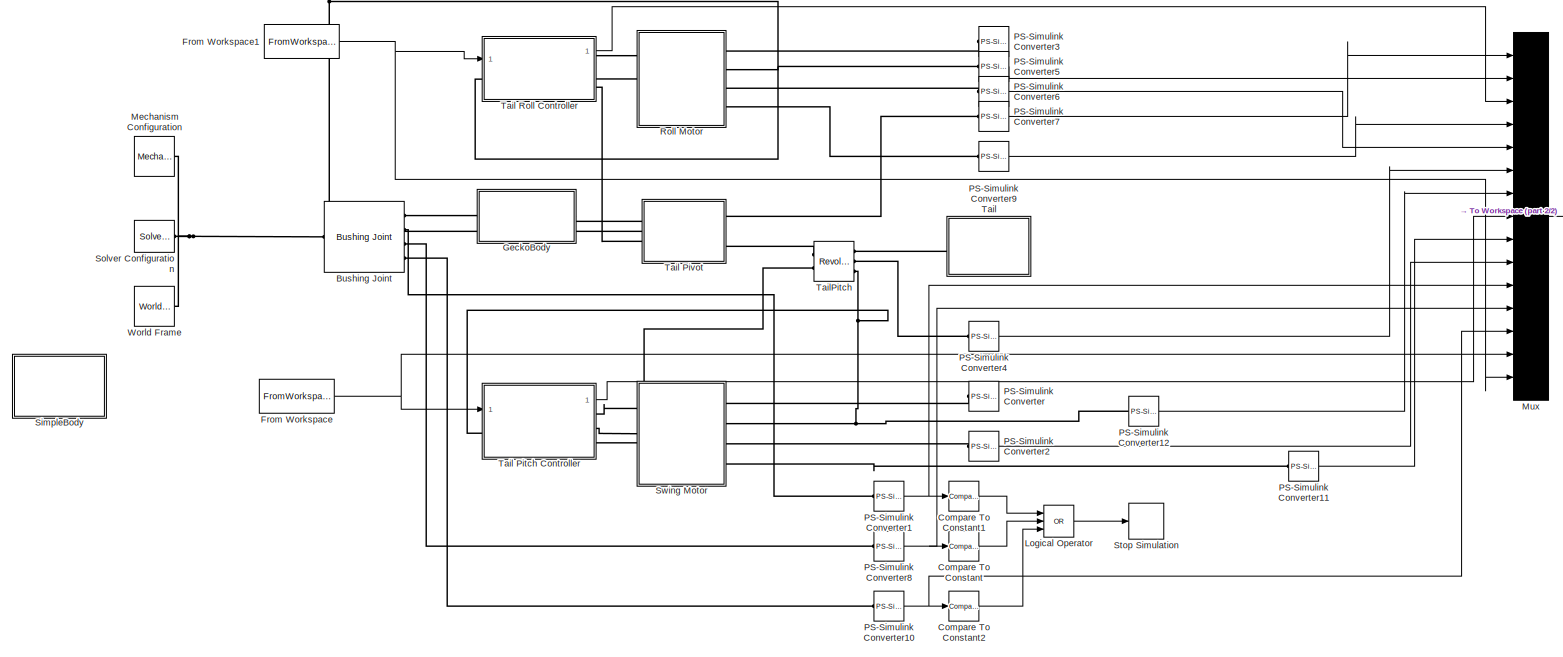
[diagram: root canvas - part 1/2, most of the canvas]
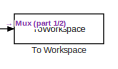
[diagram: root canvas - part 2/2, middle right region]
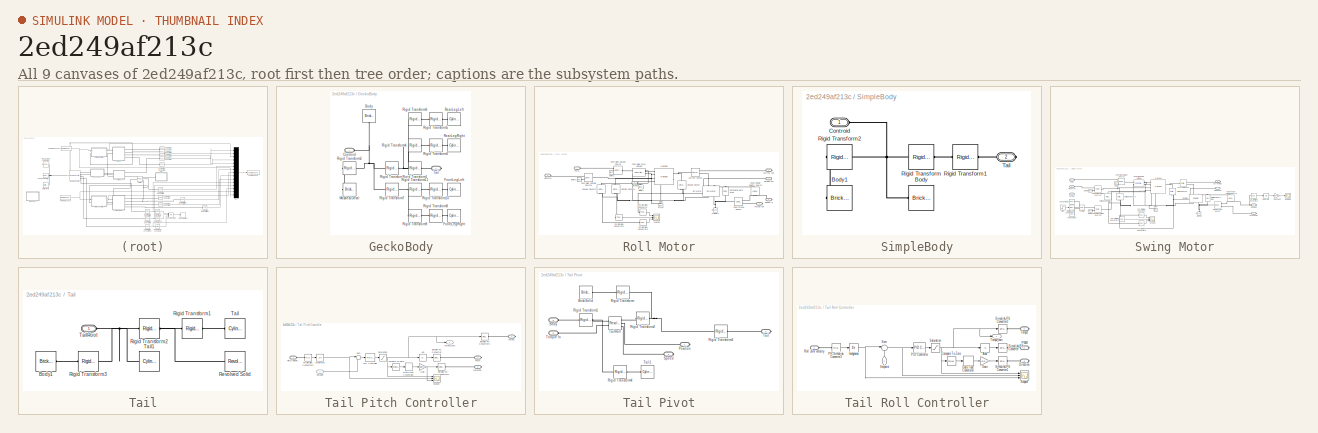
[diagram: thumbnail index - all 9 canvases of the model, root first then tree order]
MODEL slx_2ed249af213c
KIND model
CONFIG AbsTol = auto
CONFIG EnableMultiTasking = on
CONFIG FixedStep = auto
CONFIG InitFcn = TailobaticVariables
CONFIG MaxStep = auto
CONFIG MinStep = auto
CONFIG RelTol = 1e-3
CONFIG SampleTimeConstraint = Unconstrained
CONFIG Solver = VariableStepAuto
CONFIG SolverName = VariableStepAuto
CONFIG StartTime = 0.0
CONFIG StopTime = tmax
BLOCK [Reference] Bushing Joint  REF=sm_lib/Joints/Bushing Joint
  Ports = [0, 0, 0, 0, 0, 1, 4]
  SourceBlock = sm_lib/Joints/Bushing Joint
  SourceProductBaseCode = MS
  SourceProductName = Simscape Multibody
  SourceType = Bushing Joint
BLOCK [Reference] Compare To Constant  REF=simulink/Logic and Bit
Operations/Compare
To Constant
  Ports = [1, 1]
  SourceBlock = simulink/Logic and Bit\nOperations/Compare\nTo Constant
  SourceProductBaseCode = SL
  SourceProductName = Simulink
  SourceType = Compare To Constant
BLOCK [Reference] Compare To Constant1  REF=simulink/Logic and Bit
Operations/Compare
To Constant
  Ports = [1, 1]
  SourceBlock = simulink/Logic and Bit\nOperations/Compare\nTo Constant
  SourceProductBaseCode = SL
  SourceProductName = Simulink
  SourceType = Compare To Constant
BLOCK [Reference] Compare To Constant2  REF=simulink/Logic and Bit
Operations/Compare
To Constant
  Ports = [1, 1]
  SourceBlock = simulink/Logic and Bit\nOperations/Compare\nTo Constant
  SourceProductBaseCode = SL
  SourceProductName = Simulink
  SourceType = Compare To Constant
BLOCK [FromWorkspace] From Workspace
  OutputAfterFinalValue = Holding final value
  SampleTime = 0
  VariableName = PitchInput
  ZeroCross = on
BLOCK [FromWorkspace] From Workspace1
  OutputAfterFinalValue = Holding final value
  SampleTime = 0
  VariableName = RollInput
  ZeroCross = on
BLOCK [SubSystem] GeckoBody
  Ports = [0, 0, 0, 0, 0, 1, 1]
  RequestExecContextInheritance = off
BLOCK [Reference] GeckoBody/Body  REF=sm_lib/Body Elements/Brick Solid
  Ports = [0, 0, 0, 0, 0, 0, 1]
  SourceBlock = sm_lib/Body Elements/Brick Solid
  SourceProductBaseCode = MS
  SourceProductName = Simscape Multibody
  SourceType = Brick Solid
BLOCK [PMIOPort] GeckoBody/Controid
  Side = Left
BLOCK [Reference] GeckoBody/FrontLegLeft  REF=sm_lib/Body Elements/Cylindrical Solid
  Ports = [0, 0, 0, 0, 0, 0, 1]
  SourceBlock = sm_lib/Body Elements/Cylindrical Solid
  SourceProductBaseCode = MS
  SourceProductName = Simscape Multibody
  SourceType = Cylindrical Solid
BLOCK [Reference] GeckoBody/FrontLegRight  REF=sm_lib/Body Elements/Cylindrical Solid
  Ports = [0, 0, 0, 0, 0, 0, 1]
  SourceBlock = sm_lib/Body Elements/Cylindrical Solid
  SourceProductBaseCode = MS
  SourceProductName = Simscape Multibody
  SourceType = Cylindrical Solid
BLOCK [Reference] GeckoBody/Massless Decal  REF=sm_lib/Body Elements/Brick Solid
  Ports = [0, 0, 0, 0, 0, 0, 1]
  SourceBlock = sm_lib/Body Elements/Brick Solid
  SourceProductBaseCode = MS
  SourceProductName = Simscape Multibody
  SourceType = Brick Solid
BLOCK [Reference] GeckoBody/RearLegLeft  REF=sm_lib/Body Elements/Cylindrical Solid
  Ports = [0, 0, 0, 0, 0, 0, 1]
  SourceBlock = sm_lib/Body Elements/Cylindrical Solid
  SourceProductBaseCode = MS
  SourceProductName = Simscape Multibody
  SourceType = Cylindrical Solid
BLOCK [Reference] GeckoBody/RearLegRight  REF=sm_lib/Body Elements/Cylindrical Solid
  Ports = [0, 0, 0, 0, 0, 0, 1]
  SourceBlock = sm_lib/Body Elements/Cylindrical Solid
  SourceProductBaseCode = MS
  SourceProductName = Simscape Multibody
  SourceType = Cylindrical Solid
BLOCK [Reference] GeckoBody/Rigid Transform  REF=sm_lib/Frames and
Transforms/Rigid
Transform
  Ports = [0, 0, 0, 0, 0, 1, 1]
  SourceBlock = sm_lib/Frames and\nTransforms/Rigid\nTransform
  SourceProductBaseCode = MS
  SourceProductName = Simscape Multibody
  SourceType = Rigid\nTransform
BLOCK [Reference] GeckoBody/Rigid Transform1  REF=sm_lib/Frames and
Transforms/Rigid
Transform
  Ports = [0, 0, 0, 0, 0, 1, 1]
  SourceBlock = sm_lib/Frames and\nTransforms/Rigid\nTransform
  SourceProductBaseCode = MS
  SourceProductName = Simscape Multibody
  SourceType = Rigid\nTransform
BLOCK [Reference] GeckoBody/Rigid Transform10  REF=sm_lib/Frames and
Transforms/Rigid
Transform
  Ports = [0, 0, 0, 0, 0, 1, 1]
  SourceBlock = sm_lib/Frames and\nTransforms/Rigid\nTransform
  SourceProductBaseCode = MS
  SourceProductName = Simscape Multibody
  SourceType = Rigid\nTransform
BLOCK [Reference] GeckoBody/Rigid Transform11  REF=sm_lib/Frames and
Transforms/Rigid
Transform
  Ports = [0, 0, 0, 0, 0, 1, 1]
  SourceBlock = sm_lib/Frames and\nTransforms/Rigid\nTransform
  SourceProductBaseCode = MS
  SourceProductName = Simscape Multibody
  SourceType = Rigid\nTransform
BLOCK [Reference] GeckoBody/Rigid Transform2  REF=sm_lib/Frames and
Transforms/Rigid
Transform
  Ports = [0, 0, 0, 0, 0, 1, 1]
  SourceBlock = sm_lib/Frames and\nTransforms/Rigid\nTransform
  SourceProductBaseCode = MS
  SourceProductName = Simscape Multibody
  SourceType = Rigid\nTransform
BLOCK [Reference] GeckoBody/Rigid Transform3  REF=sm_lib/Frames and
Transforms/Rigid
Transform
  Ports = [0, 0, 0, 0, 0, 1, 1]
  SourceBlock = sm_lib/Frames and\nTransforms/Rigid\nTransform
  SourceProductBaseCode = MS
  SourceProductName = Simscape Multibody
  SourceType = Rigid\nTransform
BLOCK [Reference] GeckoBody/Rigid Transform4  REF=sm_lib/Frames and
Transforms/Rigid
Transform
  Ports = [0, 0, 0, 0, 0, 1, 1]
  SourceBlock = sm_lib/Frames and\nTransforms/Rigid\nTransform
  SourceProductBaseCode = MS
  SourceProductName = Simscape Multibody
  SourceType = Rigid\nTransform
BLOCK [Reference] GeckoBody/Rigid Transform5  REF=sm_lib/Frames and
Transforms/Rigid
Transform
  Ports = [0, 0, 0, 0, 0, 1, 1]
  SourceBlock = sm_lib/Frames and\nTransforms/Rigid\nTransform
  SourceProductBaseCode = MS
  SourceProductName = Simscape Multibody
  SourceType = Rigid\nTransform
BLOCK [Reference] GeckoBody/Rigid Transform6  REF=sm_lib/Frames and
Transforms/Rigid
Transform
  Ports = [0, 0, 0, 0, 0, 1, 1]
  SourceBlock = sm_lib/Frames and\nTransforms/Rigid\nTransform
  SourceProductBaseCode = MS
  SourceProductName = Simscape Multibody
  SourceType = Rigid\nTransform
BLOCK [Reference] GeckoBody/Rigid Transform7  REF=sm_lib/Frames and
Transforms/Rigid
Transform
  Ports = [0, 0, 0, 0, 0, 1, 1]
  SourceBlock = sm_lib/Frames and\nTransforms/Rigid\nTransform
  SourceProductBaseCode = MS
  SourceProductName = Simscape Multibody
  SourceType = Rigid\nTransform
BLOCK [Reference] GeckoBody/Rigid Transform8  REF=sm_lib/Frames and
Transforms/Rigid
Transform
  Ports = [0, 0, 0, 0, 0, 1, 1]
  SourceBlock = sm_lib/Frames and\nTransforms/Rigid\nTransform
  SourceProductBaseCode = MS
  SourceProductName = Simscape Multibody
  SourceType = Rigid\nTransform
BLOCK [Reference] GeckoBody/Rigid Transform9  REF=sm_lib/Frames and
Transforms/Rigid
Transform
  Ports = [0, 0, 0, 0, 0, 1, 1]
  SourceBlock = sm_lib/Frames and\nTransforms/Rigid\nTransform
  SourceProductBaseCode = MS
  SourceProductName = Simscape Multibody
  SourceType = Rigid\nTransform
BLOCK [PMIOPort] GeckoBody/Tail
  Port = 2
  Side = Right
BLOCK [Logic] Logical Operator
  AllPortsSameDT = off
  Inputs = 3
  Operator = OR
  OutDataTypeStr = boolean
  Ports = [3, 1]
BLOCK [Reference] Mechanism Configuration  REF=sm_lib/Utilities/Mechanism
Configuration
  Ports = [0, 0, 0, 0, 0, 0, 1]
  SourceBlock = sm_lib/Utilities/Mechanism\nConfiguration
  SourceProductBaseCode = MS
  SourceProductName = Simscape Multibody
  SourceType = Mechanism\nConfiguration
BLOCK [Mux] Mux
  DisplayOption = bar
  Inputs = 15
  Ports = [15, 1]
BLOCK [Reference] PS-Simulink Converter  REF=nesl_utility/PS-Simulink
Converter
  Ports = [0, 1, 0, 0, 0, 1]
  SourceBlock = nesl_utility/PS-Simulink\nConverter
  SourceProductBaseCode = SS
  SourceProductName = Simscape
  SourceType = PS-Simulink\nConverter
BLOCK [Reference] PS-Simulink Converter1  REF=nesl_utility/PS-Simulink
Converter
  Ports = [0, 1, 0, 0, 0, 1]
  SourceBlock = nesl_utility/PS-Simulink\nConverter
  SourceProductBaseCode = SS
  SourceProductName = Simscape
  SourceType = PS-Simulink\nConverter
BLOCK [Reference] PS-Simulink Converter10  REF=nesl_utility/PS-Simulink
Converter
  Ports = [0, 1, 0, 0, 0, 1]
  SourceBlock = nesl_utility/PS-Simulink\nConverter
  SourceProductBaseCode = SS
  SourceProductName = Simscape
  SourceType = PS-Simulink\nConverter
BLOCK [Reference] PS-Simulink Converter11  REF=nesl_utility/PS-Simulink
Converter
  Ports = [0, 1, 0, 0, 0, 1]
  SourceBlock = nesl_utility/PS-Simulink\nConverter
  SourceProductBaseCode = SS
  SourceProductName = Simscape
  SourceType = PS-Simulink\nConverter
BLOCK [Reference] PS-Simulink Converter12  REF=nesl_utility/PS-Simulink
Converter
  Ports = [0, 1, 0, 0, 0, 1]
  SourceBlock = nesl_utility/PS-Simulink\nConverter
  SourceProductBaseCode = SS
  SourceProductName = Simscape
  SourceType = PS-Simulink\nConverter
BLOCK [Reference] PS-Simulink Converter2  REF=nesl_utility/PS-Simulink
Converter
  Ports = [0, 1, 0, 0, 0, 1]
  SourceBlock = nesl_utility/PS-Simulink\nConverter
  SourceProductBaseCode = SS
  SourceProductName = Simscape
  SourceType = PS-Simulink\nConverter
BLOCK [Reference] PS-Simulink Converter3  REF=nesl_utility/PS-Simulink
Converter
  Ports = [0, 1, 0, 0, 0, 1]
  SourceBlock = nesl_utility/PS-Simulink\nConverter
  SourceProductBaseCode = SS
  SourceProductName = Simscape
  SourceType = PS-Simulink\nConverter
BLOCK [Reference] PS-Simulink Converter4  REF=nesl_utility/PS-Simulink
Converter
  Ports = [0, 1, 0, 0, 0, 1]
  SourceBlock = nesl_utility/PS-Simulink\nConverter
  SourceProductBaseCode = SS
  SourceProductName = Simscape
  SourceType = PS-Simulink\nConverter
BLOCK [Reference] PS-Simulink Converter5  REF=nesl_utility/PS-Simulink
Converter
  Ports = [0, 1, 0, 0, 0, 1]
  SourceBlock = nesl_utility/PS-Simulink\nConverter
  SourceProductBaseCode = SS
  SourceProductName = Simscape
  SourceType = PS-Simulink\nConverter
BLOCK [Reference] PS-Simulink Converter6  REF=nesl_utility/PS-Simulink
Converter
  Ports = [0, 1, 0, 0, 0, 1]
  SourceBlock = nesl_utility/PS-Simulink\nConverter
  SourceProductBaseCode = SS
  SourceProductName = Simscape
  SourceType = PS-Simulink\nConverter
BLOCK [Reference] PS-Simulink Converter7  REF=nesl_utility/PS-Simulink
Converter
  Ports = [0, 1, 0, 0, 0, 1]
  SourceBlock = nesl_utility/PS-Simulink\nConverter
  SourceProductBaseCode = SS
  SourceProductName = Simscape
  SourceType = PS-Simulink\nConverter
BLOCK [Reference] PS-Simulink Converter8  REF=nesl_utility/PS-Simulink
Converter
  Ports = [0, 1, 0, 0, 0, 1]
  SourceBlock = nesl_utility/PS-Simulink\nConverter
  SourceProductBaseCode = SS
  SourceProductName = Simscape
  SourceType = PS-Simulink\nConverter
BLOCK [Reference] PS-Simulink Converter9  REF=nesl_utility/PS-Simulink
Converter
  Ports = [0, 1, 0, 0, 0, 1]
  SourceBlock = nesl_utility/PS-Simulink\nConverter
  SourceProductBaseCode = SS
  SourceProductName = Simscape
  SourceType = PS-Simulink\nConverter
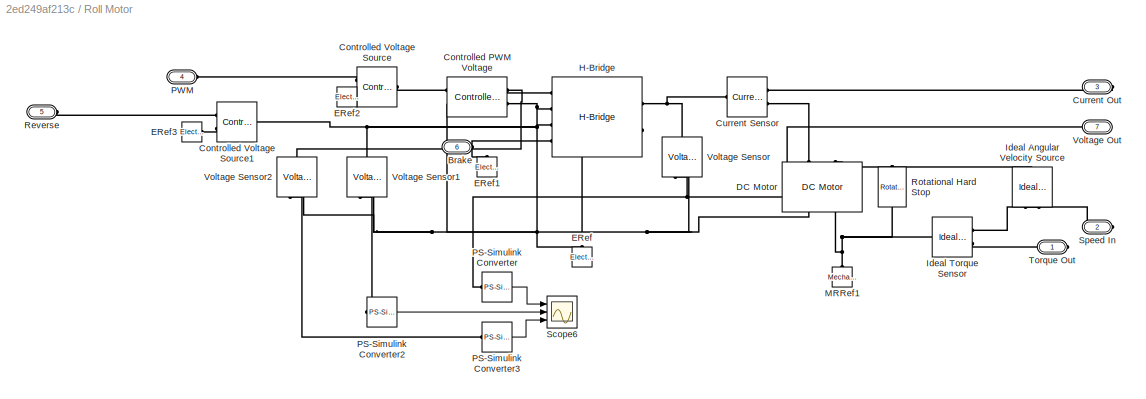
BLOCK [SubSystem] Roll Motor
  Commented = on
  Ports = [0, 0, 0, 0, 0, 3, 4]
  RequestExecContextInheritance = off
BLOCK [PMIOPort] Roll Motor/Brake
  Port = 6
  Side = Left
BLOCK [Reference] Roll Motor/Controlled PWM Voltage  REF=ee_lib/Integrated Circuits/Controlled PWM
Voltage
  Ports = [0, 0, 0, 0, 0, 2, 2]
  SourceBlock = ee_lib/Integrated Circuits/Controlled PWM\nVoltage
  SourceProductBaseCode = PS
  SourceProductName = Simscape Electrical
  SourceType = Controlled PWM\nVoltage
BLOCK [Reference] Roll Motor/Controlled Voltage Source  REF=fl_lib/Electrical/Electrical Sources/Controlled Voltage
Source
  Ports = [0, 0, 0, 0, 0, 1, 2]
  SourceBlock = fl_lib/Electrical/Electrical Sources/Controlled Voltage\nSource
  SourceProductBaseCode = SS
  SourceProductName = Simscape
  SourceType = Controlled Voltage\nSource
BLOCK [Reference] Roll Motor/Controlled Voltage Source1  REF=fl_lib/Electrical/Electrical Sources/Controlled Voltage
Source
  Ports = [0, 0, 0, 0, 0, 1, 2]
  SourceBlock = fl_lib/Electrical/Electrical Sources/Controlled Voltage\nSource
  SourceProductBaseCode = SS
  SourceProductName = Simscape
  SourceType = Controlled Voltage\nSource
BLOCK [PMIOPort] Roll Motor/Current Out
  Port = 3
  Side = Right
BLOCK [Reference] Roll Motor/Current Sensor  REF=fl_lib/Electrical/Electrical Sensors/Current Sensor
  Ports = [0, 0, 0, 0, 0, 1, 2]
  SourceBlock = fl_lib/Electrical/Electrical Sensors/Current Sensor
  SourceProductBaseCode = SS
  SourceProductName = Simscape
  SourceType = Current Sensor
BLOCK [Reference] Roll Motor/DC Motor  REF=ee_lib/Electromechanical/Brushed Motors/DC Motor
  Ports = [0, 0, 0, 0, 0, 2, 2]
  SourceBlock = ee_lib/Electromechanical/Brushed Motors/DC Motor
  SourceProductBaseCode = PS
  SourceProductName = Simscape Electrical
  SourceType = DC Motor
BLOCK [Reference] Roll Motor/ERef  REF=fl_lib/Electrical/Electrical Elements/Electrical Reference
  Ports = [0, 0, 0, 0, 0, 1]
  SourceBlock = fl_lib/Electrical/Electrical Elements/Electrical Reference
  SourceProductName = Foundation Library
  SourceType = Electrical Reference
BLOCK [Reference] Roll Motor/ERef1  REF=fl_lib/Electrical/Electrical Elements/Electrical Reference
  Ports = [0, 0, 0, 0, 0, 1]
  SourceBlock = fl_lib/Electrical/Electrical Elements/Electrical Reference
  SourceProductName = Foundation Library
  SourceType = Electrical Reference
BLOCK [Reference] Roll Motor/ERef2  REF=fl_lib/Electrical/Electrical Elements/Electrical Reference
  Ports = [0, 0, 0, 0, 0, 1]
  SourceBlock = fl_lib/Electrical/Electrical Elements/Electrical Reference
  SourceProductName = Foundation Library
  SourceType = Electrical Reference
BLOCK [Reference] Roll Motor/ERef3  REF=fl_lib/Electrical/Electrical Elements/Electrical Reference
  Ports = [0, 0, 0, 0, 0, 1]
  SourceBlock = fl_lib/Electrical/Electrical Elements/Electrical Reference
  SourceProductName = Foundation Library
  SourceType = Electrical Reference
BLOCK [Reference] Roll Motor/H-Bridge  REF=ee_lib/Semiconductors &
Converters/Converters/H-Bridge
  Ports = [0, 0, 0, 0, 0, 4, 2]
  SourceBlock = ee_lib/Semiconductors &\nConverters/Converters/H-Bridge
  SourceProductBaseCode = PS
  SourceProductName = Simscape Electrical
  SourceType = H-Bridge
BLOCK [Reference] Roll Motor/Ideal Angular Velocity Source  REF=fl_lib/Mechanical/Mechanical Sources/Ideal Angular
Velocity Source
  Ports = [0, 0, 0, 0, 0, 1, 2]
  SourceBlock = fl_lib/Mechanical/Mechanical Sources/Ideal Angular\nVelocity Source
  SourceProductBaseCode = SS
  SourceProductName = Simscape
  SourceType = Ideal Angular\nVelocity Source
BLOCK [Reference] Roll Motor/Ideal Torque Sensor  REF=fl_lib/Mechanical/Mechanical Sensors/Ideal Torque Sensor
  Ports = [0, 0, 0, 0, 0, 1, 2]
  SourceBlock = fl_lib/Mechanical/Mechanical Sensors/Ideal Torque Sensor
  SourceProductBaseCode = SS
  SourceProductName = Simscape
  SourceType = Ideal Torque Sensor
BLOCK [Reference] Roll Motor/MRRef1  REF=fl_lib/Mechanical/Rotational Elements/Mechanical
Rotational Reference
  Ports = [0, 0, 0, 0, 0, 1]
  SourceBlock = fl_lib/Mechanical/Rotational Elements/Mechanical\nRotational Reference
  SourceProductName = Foundation Library
  SourceType = Mechanical\nRotational Reference
BLOCK [Reference] Roll Motor/PS-Simulink Converter  REF=nesl_utility/PS-Simulink
Converter
  Ports = [0, 1, 0, 0, 0, 1]
  SourceBlock = nesl_utility/PS-Simulink\nConverter
  SourceProductBaseCode = SS
  SourceProductName = Simscape
  SourceType = PS-Simulink\nConverter
BLOCK [Reference] Roll Motor/PS-Simulink Converter2  REF=nesl_utility/PS-Simulink
Converter
  Ports = [0, 1, 0, 0, 0, 1]
  SourceBlock = nesl_utility/PS-Simulink\nConverter
  SourceProductBaseCode = SS
  SourceProductName = Simscape
  SourceType = PS-Simulink\nConverter
BLOCK [Reference] Roll Motor/PS-Simulink Converter3  REF=nesl_utility/PS-Simulink
Converter
  Ports = [0, 1, 0, 0, 0, 1]
  SourceBlock = nesl_utility/PS-Simulink\nConverter
  SourceProductBaseCode = SS
  SourceProductName = Simscape
  SourceType = PS-Simulink\nConverter
BLOCK [PMIOPort] Roll Motor/PWM
  Port = 4
  Side = Left
BLOCK [PMIOPort] Roll Motor/Reverse
  Port = 5
  Side = Left
BLOCK [Reference] Roll Motor/Rotational Hard Stop  REF=fl_lib/Mechanical/Rotational Elements/Rotational Hard Stop
  Commented = on
  Ports = [0, 0, 0, 0, 0, 1, 1]
  SourceBlock = fl_lib/Mechanical/Rotational Elements/Rotational Hard Stop
  SourceProductBaseCode = SS
  SourceProductName = Simscape
  SourceType = Rotational Hard Stop
BLOCK [Scope] Roll Motor/Scope6
  Floating = off
  NumInputPorts = 3
  Ports = [3]
  ScopeSpecificationString = Simulink.scopes.TimeScopeBlockCfg('CurrentConfiguration', extmgr.ConfigurationSet(extmgr.Configuration('Core','General UI',true),extmgr.Configuration('Core','Source UI',true),extmgr.Configuration('Sources','WiredSimulink',true,'DataLoggingVariableName','ScopeData5'),extmgr.Configuration('Visuals','Time Domain',true,'SerializedDisplays',{struct('MinYLimReal','-10.76534','MaxYLimReal','6.7517','YLab...<+1491ch>
BLOCK [PMIOPort] Roll Motor/Speed In
  Port = 2
  Side = Right
BLOCK [PMIOPort] Roll Motor/Torque Out
  Side = Right
BLOCK [PMIOPort] Roll Motor/Voltage Out
  Port = 7
  Side = Right
BLOCK [Reference] Roll Motor/Voltage Sensor  REF=fl_lib/Electrical/Electrical Sensors/Voltage Sensor
  Ports = [0, 0, 0, 0, 0, 1, 2]
  SourceBlock = fl_lib/Electrical/Electrical Sensors/Voltage Sensor
  SourceProductBaseCode = SS
  SourceProductName = Simscape
  SourceType = Voltage Sensor
BLOCK [Reference] Roll Motor/Voltage Sensor1  REF=fl_lib/Electrical/Electrical Sensors/Voltage Sensor
  Ports = [0, 0, 0, 0, 0, 1, 2]
  SourceBlock = fl_lib/Electrical/Electrical Sensors/Voltage Sensor
  SourceProductBaseCode = SS
  SourceProductName = Simscape
  SourceType = Voltage Sensor
BLOCK [Reference] Roll Motor/Voltage Sensor2  REF=fl_lib/Electrical/Electrical Sensors/Voltage Sensor
  Ports = [0, 0, 0, 0, 0, 1, 2]
  SourceBlock = fl_lib/Electrical/Electrical Sensors/Voltage Sensor
  SourceProductBaseCode = SS
  SourceProductName = Simscape
  SourceType = Voltage Sensor
BLOCK [SubSystem] SimpleBody
  Commented = on
  Ports = [0, 0, 0, 0, 0, 1, 1]
  RequestExecContextInheritance = off
BLOCK [Reference] SimpleBody/Body  REF=sm_lib/Body Elements/Brick Solid
  Ports = [0, 0, 0, 0, 0, 0, 1]
  SourceBlock = sm_lib/Body Elements/Brick Solid
  SourceProductBaseCode = MS
  SourceProductName = Simscape Multibody
  SourceType = Brick Solid
BLOCK [Reference] SimpleBody/Body1  REF=sm_lib/Body Elements/Brick Solid
  Ports = [0, 0, 0, 0, 0, 0, 1]
  SourceBlock = sm_lib/Body Elements/Brick Solid
  SourceProductBaseCode = MS
  SourceProductName = Simscape Multibody
  SourceType = Brick Solid
BLOCK [PMIOPort] SimpleBody/Controid
  Side = Left
BLOCK [Reference] SimpleBody/Rigid Transform  REF=sm_lib/Frames and
Transforms/Rigid
Transform
  Ports = [0, 0, 0, 0, 0, 1, 1]
  SourceBlock = sm_lib/Frames and\nTransforms/Rigid\nTransform
  SourceProductBaseCode = MS
  SourceProductName = Simscape Multibody
  SourceType = Rigid\nTransform
BLOCK [Reference] SimpleBody/Rigid Transform1  REF=sm_lib/Frames and
Transforms/Rigid
Transform
  Ports = [0, 0, 0, 0, 0, 1, 1]
  SourceBlock = sm_lib/Frames and\nTransforms/Rigid\nTransform
  SourceProductBaseCode = MS
  SourceProductName = Simscape Multibody
  SourceType = Rigid\nTransform
BLOCK [Reference] SimpleBody/Rigid Transform2  REF=sm_lib/Frames and
Transforms/Rigid
Transform
  Ports = [0, 0, 0, 0, 0, 1, 1]
  SourceBlock = sm_lib/Frames and\nTransforms/Rigid\nTransform
  SourceProductBaseCode = MS
  SourceProductName = Simscape Multibody
  SourceType = Rigid\nTransform
BLOCK [PMIOPort] SimpleBody/Tail
  Port = 2
  Side = Right
BLOCK [Reference] Solver Configuration  REF=nesl_utility/Solver
Configuration
  Ports = [0, 0, 0, 0, 0, 0, 1]
  SourceBlock = nesl_utility/Solver\nConfiguration
  SourceProductBaseCode = SS
  SourceProductName = Simscape
  SourceType = Solver\nConfiguration
BLOCK [Stop] Stop Simulation
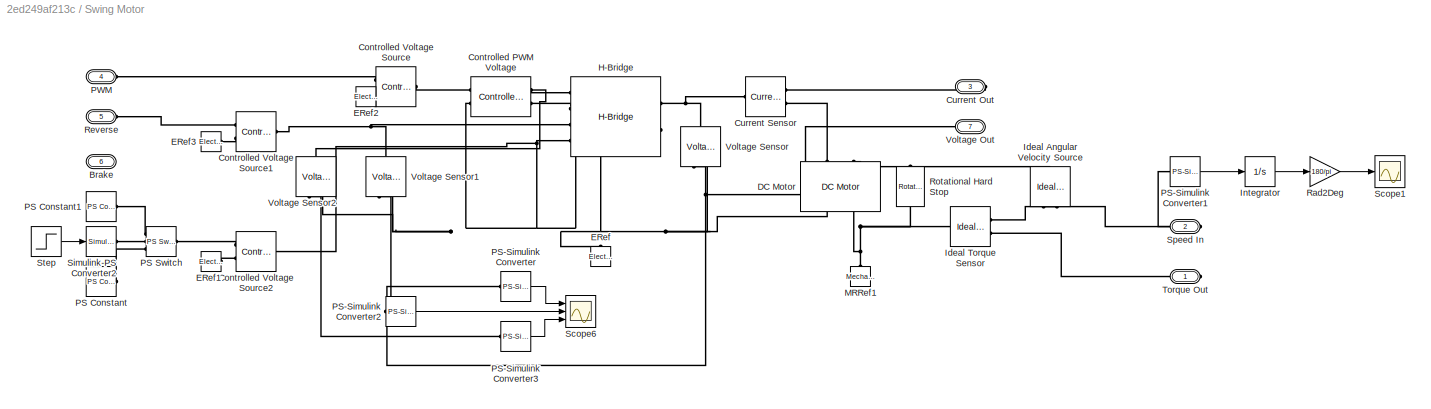
BLOCK [SubSystem] Swing Motor
  Commented = on
  Ports = [0, 0, 0, 0, 0, 3, 4]
  RequestExecContextInheritance = off
BLOCK [PMIOPort] Swing Motor/Brake
  Port = 6
  Side = Left
BLOCK [Reference] Swing Motor/Controlled PWM Voltage  REF=ee_lib/Integrated Circuits/Controlled PWM
Voltage
  Ports = [0, 0, 0, 0, 0, 2, 2]
  SourceBlock = ee_lib/Integrated Circuits/Controlled PWM\nVoltage
  SourceProductBaseCode = PS
  SourceProductName = Simscape Electrical
  SourceType = Controlled PWM\nVoltage
BLOCK [Reference] Swing Motor/Controlled Voltage Source  REF=fl_lib/Electrical/Electrical Sources/Controlled Voltage
Source
  Ports = [0, 0, 0, 0, 0, 1, 2]
  SourceBlock = fl_lib/Electrical/Electrical Sources/Controlled Voltage\nSource
  SourceProductBaseCode = SS
  SourceProductName = Simscape
  SourceType = Controlled Voltage\nSource
BLOCK [Reference] Swing Motor/Controlled Voltage Source1  REF=fl_lib/Electrical/Electrical Sources/Controlled Voltage
Source
  Ports = [0, 0, 0, 0, 0, 1, 2]
  SourceBlock = fl_lib/Electrical/Electrical Sources/Controlled Voltage\nSource
  SourceProductBaseCode = SS
  SourceProductName = Simscape
  SourceType = Controlled Voltage\nSource
BLOCK [Reference] Swing Motor/Controlled Voltage Source2  REF=fl_lib/Electrical/Electrical Sources/Controlled Voltage
Source
  Commented = on
  Ports = [0, 0, 0, 0, 0, 1, 2]
  SourceBlock = fl_lib/Electrical/Electrical Sources/Controlled Voltage\nSource
  SourceProductBaseCode = SS
  SourceProductName = Simscape
  SourceType = Controlled Voltage\nSource
BLOCK [PMIOPort] Swing Motor/Current Out
  Port = 3
  Side = Right
BLOCK [Reference] Swing Motor/Current Sensor  REF=fl_lib/Electrical/Electrical Sensors/Current Sensor
  Ports = [0, 0, 0, 0, 0, 1, 2]
  SourceBlock = fl_lib/Electrical/Electrical Sensors/Current Sensor
  SourceProductBaseCode = SS
  SourceProductName = Simscape
  SourceType = Current Sensor
BLOCK [Reference] Swing Motor/DC Motor  REF=ee_lib/Electromechanical/Brushed Motors/DC Motor
  Ports = [0, 0, 0, 0, 0, 2, 2]
  SourceBlock = ee_lib/Electromechanical/Brushed Motors/DC Motor
  SourceProductBaseCode = PS
  SourceProductName = Simscape Electrical
  SourceType = DC Motor
BLOCK [Reference] Swing Motor/ERef  REF=fl_lib/Electrical/Electrical Elements/Electrical Reference
  Ports = [0, 0, 0, 0, 0, 1]
  SourceBlock = fl_lib/Electrical/Electrical Elements/Electrical Reference
  SourceProductName = Foundation Library
  SourceType = Electrical Reference
BLOCK [Reference] Swing Motor/ERef1  REF=fl_lib/Electrical/Electrical Elements/Electrical Reference
  Commented = on
  Ports = [0, 0, 0, 0, 0, 1]
  SourceBlock = fl_lib/Electrical/Electrical Elements/Electrical Reference
  SourceProductName = Foundation Library
  SourceType = Electrical Reference
BLOCK [Reference] Swing Motor/ERef2  REF=fl_lib/Electrical/Electrical Elements/Electrical Reference
  Ports = [0, 0, 0, 0, 0, 1]
  SourceBlock = fl_lib/Electrical/Electrical Elements/Electrical Reference
  SourceProductName = Foundation Library
  SourceType = Electrical Reference
BLOCK [Reference] Swing Motor/ERef3  REF=fl_lib/Electrical/Electrical Elements/Electrical Reference
  Ports = [0, 0, 0, 0, 0, 1]
  SourceBlock = fl_lib/Electrical/Electrical Elements/Electrical Reference
  SourceProductName = Foundation Library
  SourceType = Electrical Reference
BLOCK [Reference] Swing Motor/H-Bridge  REF=ee_lib/Semiconductors &
Converters/Converters/H-Bridge
  Ports = [0, 0, 0, 0, 0, 4, 2]
  SourceBlock = ee_lib/Semiconductors &\nConverters/Converters/H-Bridge
  SourceProductBaseCode = PS
  SourceProductName = Simscape Electrical
  SourceType = H-Bridge
BLOCK [Reference] Swing Motor/Ideal Angular Velocity Source  REF=fl_lib/Mechanical/Mechanical Sources/Ideal Angular
Velocity Source
  Ports = [0, 0, 0, 0, 0, 1, 2]
  SourceBlock = fl_lib/Mechanical/Mechanical Sources/Ideal Angular\nVelocity Source
  SourceProductBaseCode = SS
  SourceProductName = Simscape
  SourceType = Ideal Angular\nVelocity Source
BLOCK [Reference] Swing Motor/Ideal Torque Sensor  REF=fl_lib/Mechanical/Mechanical Sensors/Ideal Torque Sensor
  Ports = [0, 0, 0, 0, 0, 1, 2]
  SourceBlock = fl_lib/Mechanical/Mechanical Sensors/Ideal Torque Sensor
  SourceProductBaseCode = SS
  SourceProductName = Simscape
  SourceType = Ideal Torque Sensor
BLOCK [Integrator] Swing Motor/Integrator
  Ports = [1, 1]
BLOCK [Reference] Swing Motor/MRRef1  REF=fl_lib/Mechanical/Rotational Elements/Mechanical
Rotational Reference
  Ports = [0, 0, 0, 0, 0, 1]
  SourceBlock = fl_lib/Mechanical/Rotational Elements/Mechanical\nRotational Reference
  SourceProductName = Foundation Library
  SourceType = Mechanical\nRotational Reference
BLOCK [Reference] Swing Motor/PS Constant  REF=fl_lib/Physical Signals/Sources/PS Constant
  Commented = on
  Ports = [0, 0, 0, 0, 0, 0, 1]
  SourceBlock = fl_lib/Physical Signals/Sources/PS Constant
  SourceProductBaseCode = SS
  SourceProductName = Simscape
  SourceType = PS Constant
BLOCK [Reference] Swing Motor/PS Constant1  REF=fl_lib/Physical Signals/Sources/PS Constant
  Commented = on
  Ports = [0, 0, 0, 0, 0, 0, 1]
  SourceBlock = fl_lib/Physical Signals/Sources/PS Constant
  SourceProductBaseCode = SS
  SourceProductName = Simscape
  SourceType = PS Constant
BLOCK [Reference] Swing Motor/PS Switch  REF=fl_ps_legacy_lib/Legacy Physical
Signals/Nonlinear Operators/PS Switch
  Commented = on
  Ports = [0, 0, 0, 0, 0, 3, 1]
  SourceBlock = fl_ps_legacy_lib/Legacy Physical\nSignals/Nonlinear Operators/PS Switch
  SourceProductBaseCode = SS
  SourceProductName = Simscape
  SourceType = PS Switch
BLOCK [Reference] Swing Motor/PS-Simulink Converter  REF=nesl_utility/PS-Simulink
Converter
  Ports = [0, 1, 0, 0, 0, 1]
  SourceBlock = nesl_utility/PS-Simulink\nConverter
  SourceProductBaseCode = SS
  SourceProductName = Simscape
  SourceType = PS-Simulink\nConverter
BLOCK [Reference] Swing Motor/PS-Simulink Converter1  REF=nesl_utility/PS-Simulink
Converter
  Ports = [0, 1, 0, 0, 0, 1]
  SourceBlock = nesl_utility/PS-Simulink\nConverter
  SourceProductBaseCode = SS
  SourceProductName = Simscape
  SourceType = PS-Simulink\nConverter
BLOCK [Reference] Swing Motor/PS-Simulink Converter2  REF=nesl_utility/PS-Simulink
Converter
  Ports = [0, 1, 0, 0, 0, 1]
  SourceBlock = nesl_utility/PS-Simulink\nConverter
  SourceProductBaseCode = SS
  SourceProductName = Simscape
  SourceType = PS-Simulink\nConverter
BLOCK [Reference] Swing Motor/PS-Simulink Converter3  REF=nesl_utility/PS-Simulink
Converter
  Ports = [0, 1, 0, 0, 0, 1]
  SourceBlock = nesl_utility/PS-Simulink\nConverter
  SourceProductBaseCode = SS
  SourceProductName = Simscape
  SourceType = PS-Simulink\nConverter
BLOCK [PMIOPort] Swing Motor/PWM
  Port = 4
  Side = Left
BLOCK [Gain] Swing Motor/Rad2Deg 
  Gain = 180/pi
  OutDataTypeStr = Inherit: Inherit via internal rule
  ParamDataTypeStr = Inherit: Inherit via internal rule
  SaturateOnIntegerOverflow = off
BLOCK [PMIOPort] Swing Motor/Reverse
  Port = 5
  Side = Left
BLOCK [Reference] Swing Motor/Rotational Hard Stop  REF=fl_lib/Mechanical/Rotational Elements/Rotational Hard Stop
  Commented = on
  Ports = [0, 0, 0, 0, 0, 1, 1]
  SourceBlock = fl_lib/Mechanical/Rotational Elements/Rotational Hard Stop
  SourceProductBaseCode = SS
  SourceProductName = Simscape
  SourceType = Rotational Hard Stop
BLOCK [Scope] Swing Motor/Scope1
  Floating = off
  NumInputPorts = 1
  Ports = [1]
  ScopeSpecificationString = Simulink.scopes.TimeScopeBlockCfg('CurrentConfiguration', extmgr.ConfigurationSet(extmgr.Configuration('Core','General UI',true),extmgr.Configuration('Core','Source UI',true),extmgr.Configuration('Sources','WiredSimulink',true,'DataLoggingVariableName','ScopeData3'),extmgr.Configuration('Visuals','Time Domain',true,'SerializedDisplays',{struct('MinYLimReal','-96.4862','MaxYLimReal','10.72069','YLa...<+1401ch>
BLOCK [Scope] Swing Motor/Scope6
  Floating = off
  NumInputPorts = 3
  Ports = [3]
  ScopeSpecificationString = Simulink.scopes.TimeScopeBlockCfg('CurrentConfiguration', extmgr.ConfigurationSet(extmgr.Configuration('Core','General UI',true),extmgr.Configuration('Core','Source UI',true),extmgr.Configuration('Sources','WiredSimulink',true,'DataLoggingVariableName','ScopeData5'),extmgr.Configuration('Visuals','Time Domain',true,'SerializedDisplays',{struct('MinYLimReal','-10.76534','MaxYLimReal','6.7517','YLab...<+1491ch>
BLOCK [Reference] Swing Motor/Simulink-PS Converter2  REF=nesl_utility/Simulink-PS
Converter
  Commented = on
  Ports = [1, 0, 0, 0, 0, 0, 1]
  SourceBlock = nesl_utility/Simulink-PS\nConverter
  SourceProductBaseCode = SS
  SourceProductName = Simscape
  SourceType = Simulink-PS\nConverter
BLOCK [PMIOPort] Swing Motor/Speed In
  Port = 2
  Side = Right
BLOCK [Step] Swing Motor/Step
  After = 0
  Before = 1
  Commented = on
  SampleTime = 0
  Time = 3
BLOCK [PMIOPort] Swing Motor/Torque Out
  Side = Right
BLOCK [PMIOPort] Swing Motor/Voltage Out
  Port = 7
  Side = Right
BLOCK [Reference] Swing Motor/Voltage Sensor  REF=fl_lib/Electrical/Electrical Sensors/Voltage Sensor
  Ports = [0, 0, 0, 0, 0, 1, 2]
  SourceBlock = fl_lib/Electrical/Electrical Sensors/Voltage Sensor
  SourceProductBaseCode = SS
  SourceProductName = Simscape
  SourceType = Voltage Sensor
BLOCK [Reference] Swing Motor/Voltage Sensor1  REF=fl_lib/Electrical/Electrical Sensors/Voltage Sensor
  Ports = [0, 0, 0, 0, 0, 1, 2]
  SourceBlock = fl_lib/Electrical/Electrical Sensors/Voltage Sensor
  SourceProductBaseCode = SS
  SourceProductName = Simscape
  SourceType = Voltage Sensor
BLOCK [Reference] Swing Motor/Voltage Sensor2  REF=fl_lib/Electrical/Electrical Sensors/Voltage Sensor
  Ports = [0, 0, 0, 0, 0, 1, 2]
  SourceBlock = fl_lib/Electrical/Electrical Sensors/Voltage Sensor
  SourceProductBaseCode = SS
  SourceProductName = Simscape
  SourceType = Voltage Sensor
BLOCK [SubSystem] Tail
  Ports = [0, 0, 0, 0, 0, 1]
  RequestExecContextInheritance = off
BLOCK [SubSystem] Tail Pitch Controller
  Ports = [1, 1, 0, 0, 0, 1, 3]
  RequestExecContextInheritance = off
BLOCK [Abs] Tail Pitch Controller/Abs
  SaturateOnIntegerOverflow = off
BLOCK [Reference] Tail Pitch Controller/Compare To Zero  REF=simulink/Logic and Bit
Operations/Compare
To Zero
  Ports = [1, 1]
  SourceBlock = simulink/Logic and Bit\nOperations/Compare\nTo Zero
  SourceProductBaseCode = SL
  SourceProductName = Simulink
  SourceType = Compare To Zero
BLOCK [DataTypeConversion] Tail Pitch Controller/Data Type Conversion
  RndMeth = Floor
  SaturateOnIntegerOverflow = off
BLOCK [PMIOPort] Tail Pitch Controller/Direction
  Port = 3
  Side = Right
BLOCK [Gain] Tail Pitch Controller/Gain
  Commented = through
  Gain = Motor.Vs
  OutDataTypeStr = Inherit: Inherit via internal rule
  ParamDataTypeStr = Inherit: Inherit via internal rule
  SaturateOnIntegerOverflow = off
BLOCK [Integrator] Tail Pitch Controller/Integrator
  Ports = [1, 1]
BLOCK [Reference] Tail Pitch Controller/PID Controller  REF=simulink/Continuous/PID Controller
  Ports = [1, 1]
  SourceBlock = simulink/Continuous/PID Controller
  SourceProductBaseCode = SL
  SourceProductName = Simulink
  SourceType = PID 1dof
BLOCK [Reference] Tail Pitch Controller/PS-Simulink Converter3  REF=nesl_utility/PS-Simulink
Converter
  Ports = [0, 1, 0, 0, 0, 1]
  SourceBlock = nesl_utility/PS-Simulink\nConverter
  SourceProductBaseCode = SS
  SourceProductName = Simscape
  SourceType = PS-Simulink\nConverter
BLOCK [PMIOPort] Tail Pitch Controller/PWM
  Port = 2
  Side = Right
BLOCK [PMIOPort] Tail Pitch Controller/Pitch Velocity
  Side = Left
BLOCK [Saturate] Tail Pitch Controller/Saturation
  Commented = through
  InputPortMap = u0
  LowerLimit = -Motor.Vs
  Ports = [1, 1]
  UpperLimit = Motor.Vs
BLOCK [Scope] Tail Pitch Controller/Scope3
  Floating = off
  NumInputPorts = 3
  Ports = [3]
  ScopeSpecificationString = Simulink.scopes.TimeScopeBlockCfg('CurrentConfiguration', extmgr.ConfigurationSet(extmgr.Configuration('Core','General UI',true),extmgr.Configuration('Core','Source UI',true),extmgr.Configuration('Sources','WiredSimulink',true,'DataLoggingVariableName','ScopeData1'),extmgr.Configuration('Visuals','Time Domain',true,'SerializedDisplays',{struct('MinYLimReal','-14.53594','MaxYLimReal','28.00656','YL...<+1456ch>
BLOCK [Inport] Tail Pitch Controller/Setpoint
  IconDisplay = Port number
BLOCK [Reference] Tail Pitch Controller/Simulink-PS Converter  REF=nesl_utility/Simulink-PS
Converter
  Ports = [1, 0, 0, 0, 0, 0, 1]
  SourceBlock = nesl_utility/Simulink-PS\nConverter
  SourceProductBaseCode = SS
  SourceProductName = Simscape
  SourceType = Simulink-PS\nConverter
BLOCK [Reference] Tail Pitch Controller/Simulink-PS Converter1  REF=nesl_utility/Simulink-PS
Converter
  Ports = [1, 0, 0, 0, 0, 0, 1]
  SourceBlock = nesl_utility/Simulink-PS\nConverter
  SourceProductBaseCode = SS
  SourceProductName = Simscape
  SourceType = Simulink-PS\nConverter
BLOCK [Reference] Tail Pitch Controller/Simulink-PS Converter2  REF=nesl_utility/Simulink-PS
Converter
  Ports = [1, 0, 0, 0, 0, 0, 1]
  SourceBlock = nesl_utility/Simulink-PS\nConverter
  SourceProductBaseCode = SS
  SourceProductName = Simscape
  SourceType = Simulink-PS\nConverter
BLOCK [Sum] Tail Pitch Controller/Sum
  IconShape = round
  InputSameDT = off
  Inputs = |-+
  OutDataTypeStr = Inherit: Inherit via internal rule
  Ports = [2, 1]
  SaturateOnIntegerOverflow = off
BLOCK [PMIOPort] Tail Pitch Controller/Torque
  Port = 4
  Side = Right
BLOCK [Outport] Tail Pitch Controller/Torque_num
  IconDisplay = Port number
BLOCK [SubSystem] Tail Pivot
  Ports = [0, 0, 0, 0, 0, 2, 3]
  RequestExecContextInheritance = off
BLOCK [PMIOPort] Tail Pivot/Body
  Port = 3
  Side = Left
BLOCK [Reference] Tail Pivot/Brick Solid  REF=sm_lib/Body Elements/Brick Solid
  Commented = on
  Ports = [0, 0, 0, 0, 0, 0, 1]
  SourceBlock = sm_lib/Body Elements/Brick Solid
  SourceProductBaseCode = MS
  SourceProductName = Simscape Multibody
  SourceType = Brick Solid
BLOCK [PMIOPort] Tail Pivot/Position
  Side = Right
BLOCK [Reference] Tail Pivot/Rigid Transform  REF=sm_lib/Frames and
Transforms/Rigid
Transform
  Commented = on
  Ports = [0, 0, 0, 0, 0, 1, 1]
  SourceBlock = sm_lib/Frames and\nTransforms/Rigid\nTransform
  SourceProductBaseCode = MS
  SourceProductName = Simscape Multibody
  SourceType = Rigid\nTransform
BLOCK [Reference] Tail Pivot/Rigid Transform1  REF=sm_lib/Frames and
Transforms/Rigid
Transform
  Ports = [0, 0, 0, 0, 0, 1, 1]
  SourceBlock = sm_lib/Frames and\nTransforms/Rigid\nTransform
  SourceProductBaseCode = MS
  SourceProductName = Simscape Multibody
  SourceType = Rigid\nTransform
BLOCK [Reference] Tail Pivot/Rigid Transform2  REF=sm_lib/Frames and
Transforms/Rigid
Transform
  Ports = [0, 0, 0, 0, 0, 1, 1]
  SourceBlock = sm_lib/Frames and\nTransforms/Rigid\nTransform
  SourceProductBaseCode = MS
  SourceProductName = Simscape Multibody
  SourceType = Rigid\nTransform
BLOCK [Reference] Tail Pivot/Rigid Transform3  REF=sm_lib/Frames and
Transforms/Rigid
Transform
  Ports = [0, 0, 0, 0, 0, 1, 1]
  SourceBlock = sm_lib/Frames and\nTransforms/Rigid\nTransform
  SourceProductBaseCode = MS
  SourceProductName = Simscape Multibody
  SourceType = Rigid\nTransform
BLOCK [Reference] Tail Pivot/Rigid Transform4  REF=sm_lib/Frames and
Transforms/Rigid
Transform
  Ports = [0, 0, 0, 0, 0, 1, 1]
  SourceBlock = sm_lib/Frames and\nTransforms/Rigid\nTransform
  SourceProductBaseCode = MS
  SourceProductName = Simscape Multibody
  SourceType = Rigid\nTransform
BLOCK [PMIOPort] Tail Pivot/Speed
  Port = 2
  Side = Right
BLOCK [PMIOPort] Tail Pivot/Tail
  Port = 4
  Side = Right
BLOCK [Reference] Tail Pivot/Tail1  REF=sm_lib/Body Elements/Cylindrical Solid
  Ports = [0, 0, 0, 0, 0, 0, 1]
  SourceBlock = sm_lib/Body Elements/Cylindrical Solid
  SourceProductBaseCode = MS
  SourceProductName = Simscape Multibody
  SourceType = Cylindrical Solid
BLOCK [Reference] Tail Pivot/TailRoll  REF=sm_lib/Joints/Revolute Joint
  Ports = [0, 0, 0, 0, 0, 2, 3]
  SourceBlock = sm_lib/Joints/Revolute Joint
  SourceProductBaseCode = MS
  SourceProductName = Simscape Multibody
  SourceType = Revolute Joint
BLOCK [PMIOPort] Tail Pivot/Torque In
  Port = 5
  Side = Left
BLOCK [SubSystem] Tail Roll Controller
  Ports = [1, 1, 0, 0, 0, 1, 3]
  RequestExecContextInheritance = off
BLOCK [Abs] Tail Roll Controller/Abs
  SaturateOnIntegerOverflow = off
BLOCK [Reference] Tail Roll Controller/Compare To Zero  REF=simulink/Logic and Bit
Operations/Compare
To Zero
  Ports = [1, 1]
  SourceBlock = simulink/Logic and Bit\nOperations/Compare\nTo Zero
  SourceProductBaseCode = SL
  SourceProductName = Simulink
  SourceType = Compare To Zero
BLOCK [DataTypeConversion] Tail Roll Controller/Data Type Conversion
  RndMeth = Floor
  SaturateOnIntegerOverflow = off
BLOCK [PMIOPort] Tail Roll Controller/Direction
  Port = 3
  Side = Right
BLOCK [Gain] Tail Roll Controller/Gain
  Commented = through
  Gain = Motor.Vs
  OutDataTypeStr = Inherit: Inherit via internal rule
  ParamDataTypeStr = Inherit: Inherit via internal rule
  SaturateOnIntegerOverflow = off
BLOCK [Integrator] Tail Roll Controller/Integrator
  Ports = [1, 1]
BLOCK [Reference] Tail Roll Controller/PID Controller  REF=simulink/Continuous/PID Controller
  Ports = [1, 1]
  SourceBlock = simulink/Continuous/PID Controller
  SourceProductBaseCode = SL
  SourceProductName = Simulink
  SourceType = PID 1dof
BLOCK [Reference] Tail Roll Controller/PS-Simulink Converter3  REF=nesl_utility/PS-Simulink
Converter
  Ports = [0, 1, 0, 0, 0, 1]
  SourceBlock = nesl_utility/PS-Simulink\nConverter
  SourceProductBaseCode = SS
  SourceProductName = Simscape
  SourceType = PS-Simulink\nConverter
BLOCK [PMIOPort] Tail Roll Controller/PWM
  Port = 2
  Side = Right
BLOCK [PMIOPort] Tail Roll Controller/Roll Joint velocity
  Side = Left
BLOCK [Saturate] Tail Roll Controller/Saturation
  Commented = through
  InputPortMap = u0
  LowerLimit = -Motor.Vs
  Ports = [1, 1]
  UpperLimit = Motor.Vs
BLOCK [Scope] Tail Roll Controller/Scope3
  Floating = off
  NumInputPorts = 3
  Ports = [3]
  ScopeSpecificationString = Simulink.scopes.TimeScopeBlockCfg('CurrentConfiguration', extmgr.ConfigurationSet(extmgr.Configuration('Core','General UI',true),extmgr.Configuration('Core','Source UI',true),extmgr.Configuration('Sources','WiredSimulink',true,'DataLoggingVariableName','ScopeData1'),extmgr.Configuration('Visuals','Time Domain',true,'SerializedDisplays',{struct('MinYLimReal','-931.40408','MaxYLimReal','2630.93425',...<+1465ch>
BLOCK [Inport] Tail Roll Controller/Setpoint
  IconDisplay = Port number
BLOCK [Reference] Tail Roll Controller/Simulink-PS Converter  REF=nesl_utility/Simulink-PS
Converter
  Ports = [1, 0, 0, 0, 0, 0, 1]
  SourceBlock = nesl_utility/Simulink-PS\nConverter
  SourceProductBaseCode = SS
  SourceProductName = Simscape
  SourceType = Simulink-PS\nConverter
BLOCK [Reference] Tail Roll Controller/Simulink-PS Converter1  REF=nesl_utility/Simulink-PS
Converter
  Ports = [1, 0, 0, 0, 0, 0, 1]
  SourceBlock = nesl_utility/Simulink-PS\nConverter
  SourceProductBaseCode = SS
  SourceProductName = Simscape
  SourceType = Simulink-PS\nConverter
BLOCK [Reference] Tail Roll Controller/Simulink-PS Converter2  REF=nesl_utility/Simulink-PS
Converter
  Ports = [1, 0, 0, 0, 0, 0, 1]
  SourceBlock = nesl_utility/Simulink-PS\nConverter
  SourceProductBaseCode = SS
  SourceProductName = Simscape
  SourceType = Simulink-PS\nConverter
BLOCK [Sum] Tail Roll Controller/Sum
  IconShape = round
  InputSameDT = off
  Inputs = |-+
  OutDataTypeStr = Inherit: Inherit via internal rule
  Ports = [2, 1]
  SaturateOnIntegerOverflow = off
BLOCK [PMIOPort] Tail Roll Controller/Torque
  Port = 4
  Side = Right
BLOCK [Outport] Tail Roll Controller/Torque_num
  IconDisplay = Port number
BLOCK [Reference] Tail/Body1  REF=sm_lib/Body Elements/Brick Solid
  Ports = [0, 0, 0, 0, 0, 0, 1]
  SourceBlock = sm_lib/Body Elements/Brick Solid
  SourceProductBaseCode = MS
  SourceProductName = Simscape Multibody
  SourceType = Brick Solid
BLOCK [Reference] Tail/Revolved Solid  REF=sm_lib/Body Elements/Revolved Solid
  Ports = [0, 0, 0, 0, 0, 0, 1]
  SourceBlock = sm_lib/Body Elements/Revolved Solid
  SourceProductBaseCode = MS
  SourceProductName = Simscape Multibody
  SourceType = Revolved Solid
BLOCK [Reference] Tail/Rigid Transform1  REF=sm_lib/Frames and
Transforms/Rigid
Transform
  Ports = [0, 0, 0, 0, 0, 1, 1]
  SourceBlock = sm_lib/Frames and\nTransforms/Rigid\nTransform
  SourceProductBaseCode = MS
  SourceProductName = Simscape Multibody
  SourceType = Rigid\nTransform
BLOCK [Reference] Tail/Rigid Transform2  REF=sm_lib/Frames and
Transforms/Rigid
Transform
  Ports = [0, 0, 0, 0, 0, 1, 1]
  SourceBlock = sm_lib/Frames and\nTransforms/Rigid\nTransform
  SourceProductBaseCode = MS
  SourceProductName = Simscape Multibody
  SourceType = Rigid\nTransform
BLOCK [Reference] Tail/Rigid Transform3  REF=sm_lib/Frames and
Transforms/Rigid
Transform
  Ports = [0, 0, 0, 0, 0, 1, 1]
  SourceBlock = sm_lib/Frames and\nTransforms/Rigid\nTransform
  SourceProductBaseCode = MS
  SourceProductName = Simscape Multibody
  SourceType = Rigid\nTransform
BLOCK [Reference] Tail/Tail  REF=sm_lib/Body Elements/Cylindrical Solid
  Commented = on
  Ports = [0, 0, 0, 0, 0, 0, 1]
  SourceBlock = sm_lib/Body Elements/Cylindrical Solid
  SourceProductBaseCode = MS
  SourceProductName = Simscape Multibody
  SourceType = Cylindrical Solid
BLOCK [Reference] Tail/Tail1  REF=sm_lib/Body Elements/Cylindrical Solid
  Ports = [0, 0, 0, 0, 0, 0, 1]
  SourceBlock = sm_lib/Body Elements/Cylindrical Solid
  SourceProductBaseCode = MS
  SourceProductName = Simscape Multibody
  SourceType = Cylindrical Solid
BLOCK [PMIOPort] Tail/TailRoot
  Side = Left
BLOCK [Reference] TailPitch  REF=sm_lib/Joints/Revolute Joint
  Ports = [0, 0, 0, 0, 0, 2, 3]
  SourceBlock = sm_lib/Joints/Revolute Joint
  SourceProductBaseCode = MS
  SourceProductName = Simscape Multibody
  SourceType = Revolute Joint
BLOCK [ToWorkspace] To Workspace
  FixptAsFi = on
  MaxDataPoints = inf
  Ports = [1]
  SampleTime = -1
  SaveFormat = Structure With Time
  VariableName = simout
BLOCK [Reference] World Frame  REF=sm_lib/Frames and
Transforms/World Frame
  Ports = [0, 0, 0, 0, 0, 0, 1]
  SourceBlock = sm_lib/Frames and\nTransforms/World Frame
  SourceProductBaseCode = MS
  SourceProductName = Simscape Multibody
  SourceType = World Frame
LINE Compare To Constant1:1 -> Logical Operator:1
LINE Compare To Constant2:1 -> Logical Operator:3
LINE Compare To Constant:1 -> Logical Operator:2
NET From Workspace1:1 -> Mux:15, Tail Roll Controller:1
NET From Workspace:1 -> Mux:14, Tail Pitch Controller:1
LINE Logical Operator:1 -> Stop Simulation:1
LINE Mux:1 -> To Workspace:1
NET PS-Simulink Converter10:1 -> Compare To Constant2:1, Mux:13
LINE PS-Simulink Converter11:1 -> Mux:9
LINE PS-Simulink Converter12:1 -> Mux:7
NET PS-Simulink Converter1:1 -> Compare To Constant1:1, Mux:11
LINE PS-Simulink Converter2:1 -> Mux:10
LINE PS-Simulink Converter4:1 -> Mux:6
LINE PS-Simulink Converter5:1 -> Mux:2
LINE PS-Simulink Converter6:1 -> Mux:5
LINE PS-Simulink Converter7:1 -> Mux:1
NET PS-Simulink Converter8:1 -> Compare To Constant:1, Mux:12
LINE PS-Simulink Converter9:1 -> Mux:4
LINE Roll Motor/PS-Simulink Converter2:1 -> Roll Motor/Scope6:2
LINE Roll Motor/PS-Simulink Converter3:1 -> Roll Motor/Scope6:3
LINE Roll Motor/PS-Simulink Converter:1 -> Roll Motor/Scope6:1
LINE Swing Motor/Integrator:1 -> Swing Motor/Rad2Deg :1
LINE Swing Motor/PS-Simulink Converter1:1 -> Swing Motor/Integrator:1
LINE Swing Motor/PS-Simulink Converter2:1 -> Swing Motor/Scope6:2
LINE Swing Motor/PS-Simulink Converter3:1 -> Swing Motor/Scope6:3
LINE Swing Motor/PS-Simulink Converter:1 -> Swing Motor/Scope6:1
LINE Swing Motor/Rad2Deg :1 -> Swing Motor/Scope1:1
LINE Swing Motor/Step:1 -> Swing Motor/Simulink-PS Converter2:1
LINE Tail Pitch Controller/Abs:1 -> Tail Pitch Controller/Simulink-PS Converter:1
LINE Tail Pitch Controller/Compare To Zero:1 -> Tail Pitch Controller/Data Type Conversion:1
LINE Tail Pitch Controller/Data Type Conversion:1 -> Tail Pitch Controller/Gain:1
NET Tail Pitch Controller/Gain:1 -> Tail Pitch Controller/Scope3:3, Tail Pitch Controller/Simulink-PS Converter1:1
NET Tail Pitch Controller/Integrator:1 -> Tail Pitch Controller/Scope3:2, Tail Pitch Controller/Sum:1
LINE Tail Pitch Controller/PID Controller:1 -> Tail Pitch Controller/Saturation:1
LINE Tail Pitch Controller/PS-Simulink Converter3:1 -> Tail Pitch Controller/Integrator:1
NET Tail Pitch Controller/Saturation:1 -> Tail Pitch Controller/Abs:1, Tail Pitch Controller/Compare To Zero:1, Tail Pitch Controller/Scope3:1, Tail Pitch Controller/Simulink-PS Converter2:1, Tail Pitch Controller/Torque_num:1
LINE Tail Pitch Controller/Setpoint:1 -> Tail Pitch Controller/Sum:2
LINE Tail Pitch Controller/Sum:1 -> Tail Pitch Controller/PID Controller:1
LINE Tail Pitch Controller:1 -> Mux:8
LINE Tail Roll Controller/Abs:1 -> Tail Roll Controller/Simulink-PS Converter:1
LINE Tail Roll Controller/Compare To Zero:1 -> Tail Roll Controller/Data Type Conversion:1
LINE Tail Roll Controller/Data Type Conversion:1 -> Tail Roll Controller/Gain:1
LINE Tail Roll Controller/Gain:1 -> Tail Roll Controller/Simulink-PS Converter1:1
NET Tail Roll Controller/Integrator:1 -> Tail Roll Controller/Scope3:3, Tail Roll Controller/Sum:1
LINE Tail Roll Controller/PID Controller:1 -> Tail Roll Controller/Saturation:1
LINE Tail Roll Controller/PS-Simulink Converter3:1 -> Tail Roll Controller/Integrator:1
NET Tail Roll Controller/Saturation:1 -> Tail Roll Controller/Abs:1, Tail Roll Controller/Compare To Zero:1, Tail Roll Controller/Scope3:1, Tail Roll Controller/Simulink-PS Converter2:1, Tail Roll Controller/Torque_num:1
LINE Tail Roll Controller/Setpoint:1 -> Tail Roll Controller/Sum:2
NET Tail Roll Controller/Sum:1 -> Tail Roll Controller/PID Controller:1, Tail Roll Controller/Scope3:2
LINE Tail Roll Controller:1 -> Mux:3
PNET net1: Bushing Joint:LConn1 -- Mechanism Configuration:RConn1 -- Solver Configuration:RConn1 -- World Frame:RConn1
PLINE Bushing Joint:RConn1 -- GeckoBody:LConn1
PLINE Bushing Joint:RConn2 -- PS-Simulink Converter1:LConn1
PLINE Bushing Joint:RConn3 -- PS-Simulink Converter8:LConn1
PLINE Bushing Joint:RConn4 -- PS-Simulink Converter10:LConn1
PNET net2: GeckoBody/Body:RConn1 -- GeckoBody/Controid:RConn1 -- GeckoBody/Rigid Transform2:LConn1 -- GeckoBody/Rigid Transform7:LConn1 -- GeckoBody/Rigid Transform:LConn1
PLINE GeckoBody/FrontLegLeft:RConn1 -- GeckoBody/Rigid Transform10:LConn1
PLINE GeckoBody/FrontLegRight:RConn1 -- GeckoBody/Rigid Transform8:LConn1
PLINE GeckoBody/Massless Decal:RConn1 -- GeckoBody/Rigid Transform2:RConn1
PLINE GeckoBody/RearLegLeft:RConn1 -- GeckoBody/Rigid Transform5:LConn1
PLINE GeckoBody/RearLegRight:RConn1 -- GeckoBody/Rigid Transform3:LConn1
PLINE GeckoBody/Rigid Transform10:RConn1 -- GeckoBody/Rigid Transform11:RConn1
PNET net3: GeckoBody/Rigid Transform11:LConn1 -- GeckoBody/Rigid Transform7:RConn1 -- GeckoBody/Rigid Transform9:LConn1
PNET net4: GeckoBody/Rigid Transform1:LConn1 -- GeckoBody/Rigid Transform4:LConn1 -- GeckoBody/Rigid Transform6:LConn1 -- GeckoBody/Rigid Transform:RConn1
PLINE GeckoBody/Rigid Transform1:RConn1 -- GeckoBody/Tail:RConn1
PLINE GeckoBody/Rigid Transform3:RConn1 -- GeckoBody/Rigid Transform4:RConn1
PLINE GeckoBody/Rigid Transform5:RConn1 -- GeckoBody/Rigid Transform6:RConn1
PLINE GeckoBody/Rigid Transform8:RConn1 -- GeckoBody/Rigid Transform9:RConn1
PLINE GeckoBody:RConn1 -- Tail Pivot:LConn1
PLINE PS-Simulink Converter11:LConn1 -- Swing Motor:RConn4
PNET net5: PS-Simulink Converter12:LConn1 -- Swing Motor:RConn2 -- Tail Pitch Controller:LConn1 -- TailPitch:RConn3
PLINE PS-Simulink Converter2:LConn1 -- Swing Motor:RConn3
PLINE PS-Simulink Converter3:LConn1 -- Roll Motor:RConn1
PLINE PS-Simulink Converter4:LConn1 -- TailPitch:RConn2
PNET net6: PS-Simulink Converter5:LConn1 -- Roll Motor:RConn2 -- Tail Pivot:RConn2 -- Tail Roll Controller:LConn1
PLINE PS-Simulink Converter6:LConn1 -- Roll Motor:RConn3
PLINE PS-Simulink Converter7:LConn1 -- Tail Pivot:RConn1
PLINE PS-Simulink Converter9:LConn1 -- Roll Motor:RConn4
PLINE PS-Simulink Converter:LConn1 -- Swing Motor:RConn1
PNET net7: Roll Motor/Brake:RConn1 -- Roll Motor/ERef1:LConn1 -- Roll Motor/H-Bridge:LConn4
PLINE Roll Motor/Controlled PWM Voltage:LConn1 -- Roll Motor/Controlled Voltage Source:LConn1
PNET net8: Roll Motor/Controlled PWM Voltage:LConn2 -- Roll Motor/Controlled PWM Voltage:RConn2 -- Roll Motor/DC Motor:RConn1 -- Roll Motor/ERef:LConn1 -- Roll Motor/H-Bridge:LConn2 -- Roll Motor/H-Bridge:RConn2 -- Roll Motor/Voltage Sensor1:RConn2 -- Roll Motor/Voltage Sensor2:RConn2 -- Roll Motor/Voltage Sensor:RConn2
PNET net9: Roll Motor/Controlled PWM Voltage:RConn1 -- Roll Motor/H-Bridge:LConn1 -- Roll Motor/Voltage Sensor2:LConn1
PNET net10: Roll Motor/Controlled Voltage Source1:LConn1 -- Roll Motor/H-Bridge:LConn3 -- Roll Motor/Voltage Sensor1:LConn1
PLINE Roll Motor/Controlled Voltage Source1:RConn1 -- Roll Motor/Reverse:RConn1
PLINE Roll Motor/Controlled Voltage Source1:RConn2 -- Roll Motor/ERef3:LConn1
PLINE Roll Motor/Controlled Voltage Source:RConn1 -- Roll Motor/PWM:RConn1
PLINE Roll Motor/Controlled Voltage Source:RConn2 -- Roll Motor/ERef2:LConn1
PLINE Roll Motor/Current Out:RConn1 -- Roll Motor/Current Sensor:RConn1
PNET net11: Roll Motor/Current Sensor:LConn1 -- Roll Motor/H-Bridge:RConn1 -- Roll Motor/Voltage Sensor:LConn1
PLINE Roll Motor/Current Sensor:RConn2 -- Roll Motor/DC Motor:LConn1
PNET net12: Roll Motor/DC Motor:LConn2 -- Roll Motor/Ideal Angular Velocity Source:LConn1 -- Roll Motor/Rotational Hard Stop:LConn1
PNET net13: Roll Motor/DC Motor:RConn2 -- Roll Motor/Ideal Torque Sensor:LConn1 -- Roll Motor/MRRef1:LConn1 -- Roll Motor/Rotational Hard Stop:RConn1
PLINE Roll Motor/Ideal Angular Velocity Source:RConn1 -- Roll Motor/Speed In:RConn1
PLINE Roll Motor/Ideal Angular Velocity Source:RConn2 -- Roll Motor/Ideal Torque Sensor:RConn1
PLINE Roll Motor/Ideal Torque Sensor:RConn2 -- Roll Motor/Torque Out:RConn1
PLINE Roll Motor/PS-Simulink Converter2:LConn1 -- Roll Motor/Voltage Sensor1:RConn1
PLINE Roll Motor/PS-Simulink Converter3:LConn1 -- Roll Motor/Voltage Sensor2:RConn1
PNET net14: Roll Motor/PS-Simulink Converter:LConn1 -- Roll Motor/Voltage Out:RConn1 -- Roll Motor/Voltage Sensor:RConn1
PLINE Roll Motor:LConn1 -- Tail Roll Controller:RConn1
PLINE Roll Motor:LConn2 -- Tail Roll Controller:RConn2
PLINE SimpleBody/Body1:RConn1 -- SimpleBody/Rigid Transform2:RConn1
PNET net15: SimpleBody/Body:RConn1 -- SimpleBody/Controid:RConn1 -- SimpleBody/Rigid Transform2:LConn1 -- SimpleBody/Rigid Transform:LConn1
PLINE SimpleBody/Rigid Transform1:LConn1 -- SimpleBody/Rigid Transform:RConn1
PLINE SimpleBody/Rigid Transform1:RConn1 -- SimpleBody/Tail:RConn1
PLINE Swing Motor/Controlled PWM Voltage:LConn1 -- Swing Motor/Controlled Voltage Source:LConn1
PNET net16: Swing Motor/Controlled PWM Voltage:LConn2 -- Swing Motor/Controlled PWM Voltage:RConn2 -- Swing Motor/Controlled Voltage Source2:LConn1 -- Swing Motor/DC Motor:RConn1 -- Swing Motor/ERef:LConn1 -- Swing Motor/H-Bridge:LConn2 -- Swing Motor/H-Bridge:LConn4 -- Swing Motor/H-Bridge:RConn2 -- Swing Motor/Voltage Sensor1:RConn2 -- Swing Motor/Voltage Sensor2:RConn2 -- Swing Motor/Voltage Sensor:RConn2
PNET net17: Swing Motor/Controlled PWM Voltage:RConn1 -- Swing Motor/H-Bridge:LConn1 -- Swing Motor/Voltage Sensor2:LConn1
PNET net18: Swing Motor/Controlled Voltage Source1:LConn1 -- Swing Motor/H-Bridge:LConn3 -- Swing Motor/Voltage Sensor1:LConn1
PLINE Swing Motor/Controlled Voltage Source1:RConn1 -- Swing Motor/Reverse:RConn1
PLINE Swing Motor/Controlled Voltage Source1:RConn2 -- Swing Motor/ERef3:LConn1
PLINE Swing Motor/Controlled Voltage Source2:RConn1 -- Swing Motor/PS Switch:RConn1
PLINE Swing Motor/Controlled Voltage Source2:RConn2 -- Swing Motor/ERef1:LConn1
PLINE Swing Motor/Controlled Voltage Source:RConn1 -- Swing Motor/PWM:RConn1
PLINE Swing Motor/Controlled Voltage Source:RConn2 -- Swing Motor/ERef2:LConn1
PLINE Swing Motor/Current Out:RConn1 -- Swing Motor/Current Sensor:RConn1
PNET net19: Swing Motor/Current Sensor:LConn1 -- Swing Motor/H-Bridge:RConn1 -- Swing Motor/Voltage Sensor:LConn1
PLINE Swing Motor/Current Sensor:RConn2 -- Swing Motor/DC Motor:LConn1
PNET net20: Swing Motor/DC Motor:LConn2 -- Swing Motor/Ideal Angular Velocity Source:LConn1 -- Swing Motor/Rotational Hard Stop:LConn1
PNET net21: Swing Motor/DC Motor:RConn2 -- Swing Motor/Ideal Torque Sensor:LConn1 -- Swing Motor/MRRef1:LConn1 -- Swing Motor/Rotational Hard Stop:RConn1
PNET net22: Swing Motor/Ideal Angular Velocity Source:RConn1 -- Swing Motor/PS-Simulink Converter1:LConn1 -- Swing Motor/Speed In:RConn1
PLINE Swing Motor/Ideal Angular Velocity Source:RConn2 -- Swing Motor/Ideal Torque Sensor:RConn1
PLINE Swing Motor/Ideal Torque Sensor:RConn2 -- Swing Motor/Torque Out:RConn1
PLINE Swing Motor/PS Constant1:RConn1 -- Swing Motor/PS Switch:LConn1
PLINE Swing Motor/PS Constant:RConn1 -- Swing Motor/PS Switch:LConn3
PLINE Swing Motor/PS Switch:LConn2 -- Swing Motor/Simulink-PS Converter2:RConn1
PLINE Swing Motor/PS-Simulink Converter2:LConn1 -- Swing Motor/Voltage Sensor1:RConn1
PLINE Swing Motor/PS-Simulink Converter3:LConn1 -- Swing Motor/Voltage Sensor2:RConn1
PNET net23: Swing Motor/PS-Simulink Converter:LConn1 -- Swing Motor/Voltage Out:RConn1 -- Swing Motor/Voltage Sensor:RConn1
PLINE Swing Motor:LConn1 -- Tail Pitch Controller:RConn1
PLINE Swing Motor:LConn2 -- Tail Pitch Controller:RConn2
PLINE Tail Pitch Controller/Direction:RConn1 -- Tail Pitch Controller/Simulink-PS Converter1:RConn1
PLINE Tail Pitch Controller/PS-Simulink Converter3:LConn1 -- Tail Pitch Controller/Pitch Velocity:RConn1
PLINE Tail Pitch Controller/PWM:RConn1 -- Tail Pitch Controller/Simulink-PS Converter:RConn1
PLINE Tail Pitch Controller/Simulink-PS Converter2:RConn1 -- Tail Pitch Controller/Torque:RConn1
PLINE Tail Pitch Controller:RConn3 -- TailPitch:LConn2
PLINE Tail Pivot/Body:RConn1 -- Tail Pivot/Rigid Transform1:LConn1
PLINE Tail Pivot/Brick Solid:RConn1 -- Tail Pivot/Rigid Transform:LConn1
PLINE Tail Pivot/Position:RConn1 -- Tail Pivot/TailRoll:RConn2
PNET net24: Tail Pivot/Rigid Transform1:RConn1 -- Tail Pivot/Rigid Transform4:LConn1 -- Tail Pivot/TailRoll:LConn1
PLINE Tail Pivot/Rigid Transform2:LConn1 -- Tail Pivot/TailRoll:RConn1
PNET net25: Tail Pivot/Rigid Transform2:RConn1 -- Tail Pivot/Rigid Transform3:LConn1 -- Tail Pivot/Rigid Transform:RConn1
PLINE Tail Pivot/Rigid Transform3:RConn1 -- Tail Pivot/Tail:RConn1
PLINE Tail Pivot/Rigid Transform4:RConn1 -- Tail Pivot/Tail1:RConn1
PLINE Tail Pivot/Speed:RConn1 -- Tail Pivot/TailRoll:RConn3
PLINE Tail Pivot/TailRoll:LConn2 -- Tail Pivot/Torque In:RConn1
PLINE Tail Pivot:LConn2 -- Tail Roll Controller:RConn3
PLINE Tail Pivot:RConn3 -- TailPitch:LConn1
PLINE Tail Roll Controller/Direction:RConn1 -- Tail Roll Controller/Simulink-PS Converter1:RConn1
PLINE Tail Roll Controller/PS-Simulink Converter3:LConn1 -- Tail Roll Controller/Roll Joint velocity:RConn1
PLINE Tail Roll Controller/PWM:RConn1 -- Tail Roll Controller/Simulink-PS Converter:RConn1
PLINE Tail Roll Controller/Simulink-PS Converter2:RConn1 -- Tail Roll Controller/Torque:RConn1
PLINE Tail/Body1:RConn1 -- Tail/Rigid Transform3:LConn1
PNET net26: Tail/Revolved Solid:RConn1 -- Tail/Rigid Transform1:LConn1 -- Tail/Rigid Transform2:RConn1
PLINE Tail/Rigid Transform1:RConn1 -- Tail/Tail:RConn1
PNET net27: Tail/Rigid Transform2:LConn1 -- Tail/Rigid Transform3:RConn1 -- Tail/Tail1:RConn1 -- Tail/TailRoot:RConn1
PLINE Tail:LConn1 -- TailPitch:RConn1
note: NET lines group one-source signal fan-out (src -> all destinations, sorted); 1:1 wires keep LINE; PNET lines group multi-terminal physical nets as a canonical sorted terminal list (undirected conserving connections); 2-terminal nets keep the pairwise PLINE form
